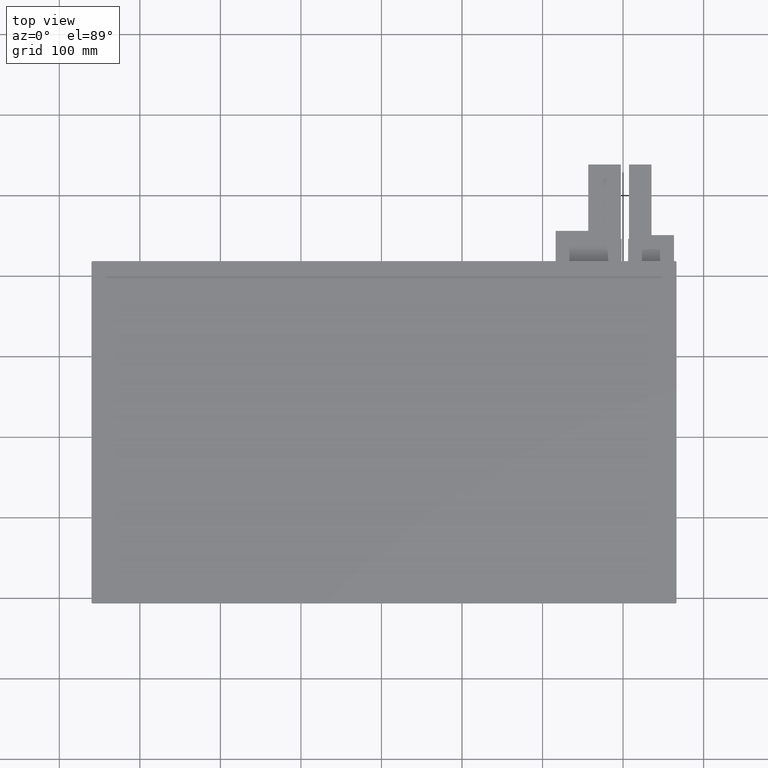
[diagram: clean part render]
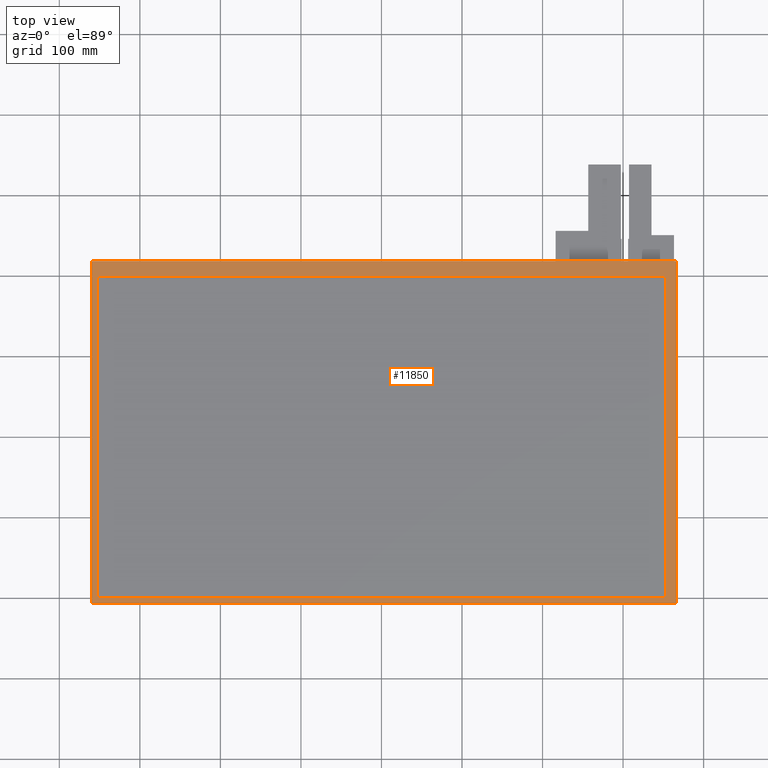
[diagram: same view with one face highlighted and labeled with its STEP entity id]
A machine part, top view. The second image highlights one B-rep face of the part: STEP entity #11850.
In plain terms, the highlighted planar face has unit normal (0, 0, 1).
Its self-contained STEP definition (entity closure, byte-faithful):
#111=FACE_BOUND('',#711,.T.);
#116=FACE_OUTER_BOUND('',#710,.T.);
#710=EDGE_LOOP('',(#7739,#7740,#7741,#7742,#7743,#7744,#7745,#7746));
#711=EDGE_LOOP('',(#7747,#7748,#7749,#7750));
#1309=LINE('',#16059,#3053);
#1311=LINE('',#16063,#3055);
#1312=LINE('',#16065,#3056);
#1313=LINE('',#16067,#3057);
#1314=LINE('',#16069,#3058);
#1315=LINE('',#16071,#3059);
#1316=LINE('',#16073,#3060);
#1317=LINE('',#16074,#3061);
#1318=LINE('',#16077,#3062);
#1319=LINE('',#16079,#3063);
#1320=LINE('',#16081,#3064);
#1321=LINE('',#16082,#3065);
#3053=VECTOR('',#13083,10.);
#3055=VECTOR('',#13087,10.);
#3056=VECTOR('',#13088,10.);
#3057=VECTOR('',#13089,10.);
#3058=VECTOR('',#13090,10.);
#3059=VECTOR('',#13091,10.);
#3060=VECTOR('',#13092,10.);
#3061=VECTOR('',#13093,10.);
#3062=VECTOR('',#13094,10.);
#3063=VECTOR('',#13095,10.);
#3064=VECTOR('',#13096,10.);
#3065=VECTOR('',#13097,10.);
#4797=VERTEX_POINT('',#16056);
#4798=VERTEX_POINT('',#16058);
#4799=VERTEX_POINT('',#16062);
#4800=VERTEX_POINT('',#16064);
#4801=VERTEX_POINT('',#16066);
#4802=VERTEX_POINT('',#16068);
#4803=VERTEX_POINT('',#16070);
#4804=VERTEX_POINT('',#16072);
#4805=VERTEX_POINT('',#16075);
#4806=VERTEX_POINT('',#16076);
#4807=VERTEX_POINT('',#16078);
#4808=VERTEX_POINT('',#16080);
#5973=EDGE_CURVE('',#4797,#4798,#1309,.T.);
#5975=EDGE_CURVE('',#4797,#4799,#1311,.T.);
#5976=EDGE_CURVE('',#4800,#4799,#1312,.T.);
#5977=EDGE_CURVE('',#4800,#4801,#1313,.T.);
#5978=EDGE_CURVE('',#4802,#4801,#1314,.T.);
#5979=EDGE_CURVE('',#4802,#4803,#1315,.T.);
#5980=EDGE_CURVE('',#4804,#4803,#1316,.T.);
#5981=EDGE_CURVE('',#4804,#4798,#1317,.T.);
#5982=EDGE_CURVE('',#4805,#4806,#1318,.T.);
#5983=EDGE_CURVE('',#4806,#4807,#1319,.T.);
#5984=EDGE_CURVE('',#4807,#4808,#1320,.T.);
#5985=EDGE_CURVE('',#4808,#4805,#1321,.T.);
#7739=ORIENTED_EDGE('',*,*,#5973,.F.);
#7740=ORIENTED_EDGE('',*,*,#5975,.T.);
#7741=ORIENTED_EDGE('',*,*,#5976,.F.);
#7742=ORIENTED_EDGE('',*,*,#5977,.T.);
#7743=ORIENTED_EDGE('',*,*,#5978,.F.);
#7744=ORIENTED_EDGE('',*,*,#5979,.T.);
#7745=ORIENTED_EDGE('',*,*,#5980,.F.);
#7746=ORIENTED_EDGE('',*,*,#5981,.T.);
#7747=ORIENTED_EDGE('',*,*,#5982,.T.);
#7748=ORIENTED_EDGE('',*,*,#5983,.T.);
#7749=ORIENTED_EDGE('',*,*,#5984,.T.);
#7750=ORIENTED_EDGE('',*,*,#5985,.T.);
#11264=PLANE('',#12464);
#11850=ADVANCED_FACE('',(#116,#111),#11264,.T.);
#12464=AXIS2_PLACEMENT_3D('',#16061,#13085,#13086);
#13083=DIRECTION('',(0.707106781186548,0.707106781186548,0.));
#13085=DIRECTION('center_axis',(0.,0.,1.));
#13086=DIRECTION('ref_axis',(1.,0.,0.));
#13087=DIRECTION('',(3.34215774111054E-16,-1.,0.));
#13088=DIRECTION('',(-0.707106781186548,0.707106781186548,0.));
#13089=DIRECTION('',(1.,1.46745711639839E-16,0.));
#13090=DIRECTION('',(-0.707106781186548,-0.707106781186548,0.));
#13091=DIRECTION('',(0.,1.,0.));
#13092=DIRECTION('',(0.707106781186548,-0.707106781186548,0.));
#13093=DIRECTION('',(-1.,-4.89152372132796E-17,0.));
#13094=DIRECTION('',(-3.55404644621783E-16,1.,0.));
#13095=DIRECTION('',(1.,-5.03645262092501E-17,0.));
#13096=DIRECTION('',(0.,-1.,0.));
#13097=DIRECTION('',(-1.,-1.007290524185E-16,0.));
#16056=CARTESIAN_POINT('',(-360.,217.525,0.));
#16058=CARTESIAN_POINT('',(-359.,218.525,0.));
#16059=CARTESIAN_POINT('',(-321.8625,255.6625,0.));
#16061=CARTESIAN_POINT('Origin',(3.14999999999998,5.92500000000024,0.));
#16062=CARTESIAN_POINT('',(-360.,-205.675,0.));
#16063=CARTESIAN_POINT('',(-360.,218.525,0.));
#16064=CARTESIAN_POINT('',(-359.,-206.675,0.));
#16065=CARTESIAN_POINT('',(-321.8625,-243.8125,0.));
#16066=CARTESIAN_POINT('',(365.3,-206.675,0.));
#16067=CARTESIAN_POINT('',(-360.,-206.675,0.));
#16068=CARTESIAN_POINT('',(366.3,-205.675,0.));
#16069=CARTESIAN_POINT('',(328.1625,-243.8125,0.));
#16070=CARTESIAN_POINT('',(366.3,217.525,0.));
#16071=CARTESIAN_POINT('',(366.3,-206.675,0.));
#16072=CARTESIAN_POINT('',(365.3,218.525,0.));
#16073=CARTESIAN_POINT('',(328.1625,255.6625,0.));
#16074=CARTESIAN_POINT('',(366.3,218.525,0.));
#16075=CARTESIAN_POINT('',(-352.9,-199.925,0.));
#16076=CARTESIAN_POINT('',(-352.9,199.925,0.));
#16077=CARTESIAN_POINT('',(-352.9,-96.9999999999999,0.));
#16078=CARTESIAN_POINT('',(352.5,199.925,0.));
#16079=CARTESIAN_POINT('',(-174.875,199.925,0.));
#16080=CARTESIAN_POINT('',(352.5,-199.925,0.));
#16081=CARTESIAN_POINT('',(352.5,102.925,0.));
#16082=CARTESIAN_POINT('',(177.825,-199.925,0.));